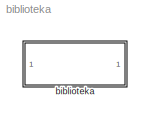
MODEL biblioteka
KIND library
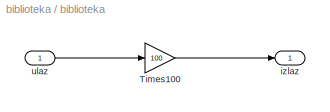
BLOCK [SubSystem] biblioteka
  Ports = [1, 1]
  RequestExecContextInheritance = off
  SID = 1
  Variant = off
BLOCK [Gain] biblioteka/Times100
  Gain = 100
  OutDataTypeStr = Inherit: Inherit via internal rule
  ParamDataTypeStr = Inherit: Inherit via internal rule
  SID = 4
  SaturateOnIntegerOverflow = off
BLOCK [Outport] biblioteka/izlaz
  IconDisplay = Port number
  SID = 3
BLOCK [Inport] biblioteka/ulaz
  IconDisplay = Port number
  SID = 2
LINE biblioteka/Times100:1 -> biblioteka/izlaz:1
LINE biblioteka/ulaz:1 -> biblioteka/Times100:1
